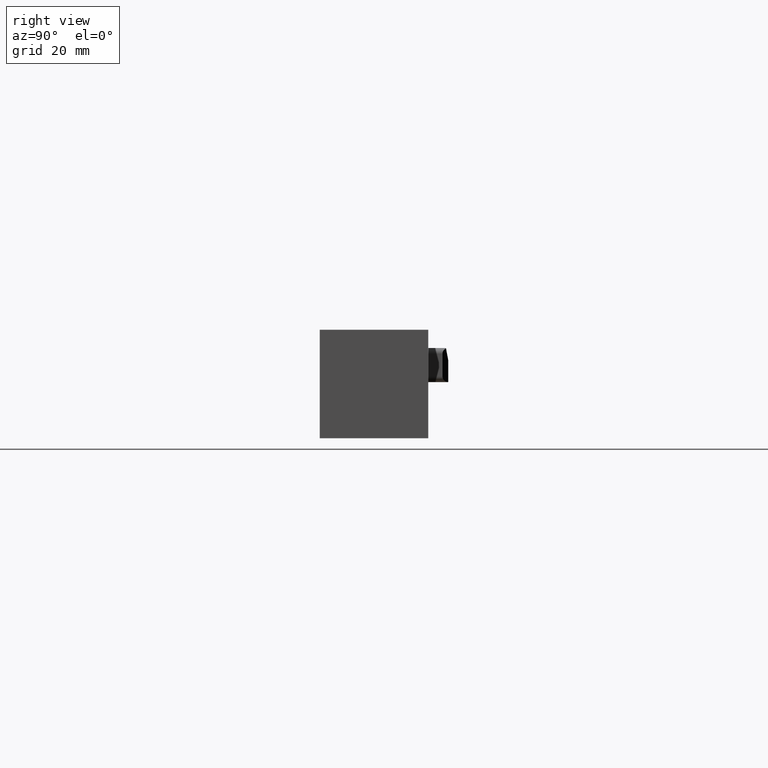
[diagram: clean part render]
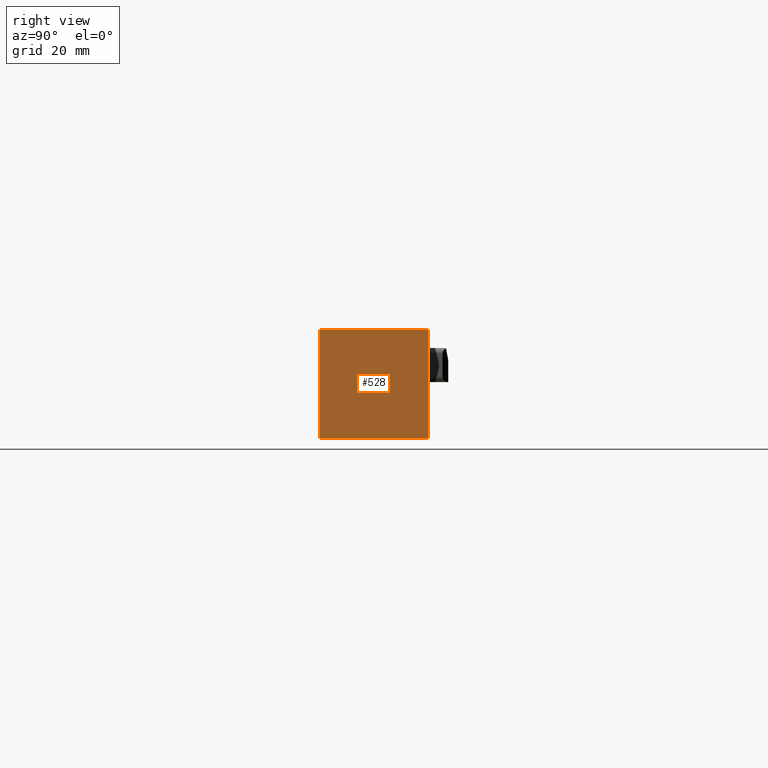
[diagram: same view with one face highlighted and labeled with its STEP entity id]
A machine part, right view. The second image highlights one B-rep face of the part: STEP entity #528.
In plain terms, the highlighted planar face has unit normal (1, 0, -0).
Its self-contained STEP definition (entity closure, byte-faithful):
#95 = LINE ( 'NONE', #1386, #816 ) ;
#153 = DIRECTION ( 'NONE',  ( 1.000000000000000000, 2.482138512326286700E-030, -2.220446049250363400E-016 ) ) ;
#157 = LINE ( 'NONE', #421, #695 ) ;
#161 = CARTESIAN_POINT ( 'NONE',  ( -2.081668171172168500E-014, -19.04999999999997900, -38.09999999999995900 ) ) ;
#187 = VERTEX_POINT ( 'NONE', #829 ) ;
#189 = ORIENTED_EDGE ( 'NONE', *, *, #287, .F. ) ;
#287 = EDGE_CURVE ( 'NONE', #877, #989, #352, .T. ) ;
#293 = VECTOR ( 'NONE', #979, 1000.000000000000000 ) ;
#352 = LINE ( 'NONE', #161, #1630 ) ;
#395 = LINE ( 'NONE', #1029, #293 ) ;
#421 = CARTESIAN_POINT ( 'NONE',  ( 0.0000000000000000000, -19.04999999999996900, -19.04999999999997900 ) ) ;
#450 = EDGE_CURVE ( 'NONE', #877, #1194, #395, .T. ) ;
#507 = DIRECTION ( 'NONE',  ( 2.220446049250363400E-016, 0.0000000000000000000, 1.000000000000000000 ) ) ;
#528 = ADVANCED_FACE ( 'NONE', ( #1047 ), #793, .T. ) ;
#612 = ORIENTED_EDGE ( 'NONE', *, *, #1656, .T. ) ;
#685 = DIRECTION ( 'NONE',  ( 2.482138512326290200E-030, 1.000000000000000000, 0.0000000000000000000 ) ) ;
#695 = VECTOR ( 'NONE', #685, 1000.000000000000000 ) ;
#793 = PLANE ( 'NONE',  #946 ) ;
#816 = VECTOR ( 'NONE', #1570, 1000.000000000000000 ) ;
#829 = CARTESIAN_POINT ( 'NONE',  ( 0.0000000000000000000, 0.0000000000000000000, -19.04999999999997900 ) ) ;
#864 = DIRECTION ( 'NONE',  ( 2.220446049250363900E-016, 0.0000000000000000000, 1.000000000000000000 ) ) ;
#877 = VERTEX_POINT ( 'NONE', #1634 ) ;
#946 = AXIS2_PLACEMENT_3D ( 'NONE', #1234, #153, #507 ) ;
#979 = DIRECTION ( 'NONE',  ( 2.482138512326290200E-030, 1.000000000000000000, 0.0000000000000000000 ) ) ;
#989 = VERTEX_POINT ( 'NONE', #1092 ) ;
#1011 = EDGE_CURVE ( 'NONE', #989, #187, #157, .T. ) ;
#1015 = ORIENTED_EDGE ( 'NONE', *, *, #450, .T. ) ;
#1029 = CARTESIAN_POINT ( 'NONE',  ( -2.081668171172168500E-014, -19.04999999999997900, -38.09999999999995900 ) ) ;
#1047 = FACE_OUTER_BOUND ( 'NONE', #1137, .T. ) ;
#1092 = CARTESIAN_POINT ( 'NONE',  ( 0.0000000000000000000, -19.04999999999996900, -19.04999999999997900 ) ) ;
#1137 = EDGE_LOOP ( 'NONE', ( #612, #1264, #189, #1015 ) ) ;
#1194 = VERTEX_POINT ( 'NONE', #1534 ) ;
#1234 = CARTESIAN_POINT ( 'NONE',  ( -2.081668171172168500E-014, -19.04999999999997900, -38.09999999999995900 ) ) ;
#1264 = ORIENTED_EDGE ( 'NONE', *, *, #1011, .F. ) ;
#1386 = CARTESIAN_POINT ( 'NONE',  ( -2.081668171172168500E-014, 0.0000000000000000000, -38.09999999999995900 ) ) ;
#1534 = CARTESIAN_POINT ( 'NONE',  ( -2.081668171172168500E-014, 0.0000000000000000000, -38.09999999999995900 ) ) ;
#1570 = DIRECTION ( 'NONE',  ( 2.220446049250363900E-016, 0.0000000000000000000, 1.000000000000000000 ) ) ;
#1630 = VECTOR ( 'NONE', #864, 1000.000000000000000 ) ;
#1634 = CARTESIAN_POINT ( 'NONE',  ( -2.081668171172168500E-014, -19.04999999999997900, -38.09999999999995900 ) ) ;
#1656 = EDGE_CURVE ( 'NONE', #1194, #187, #95, .T. ) ;